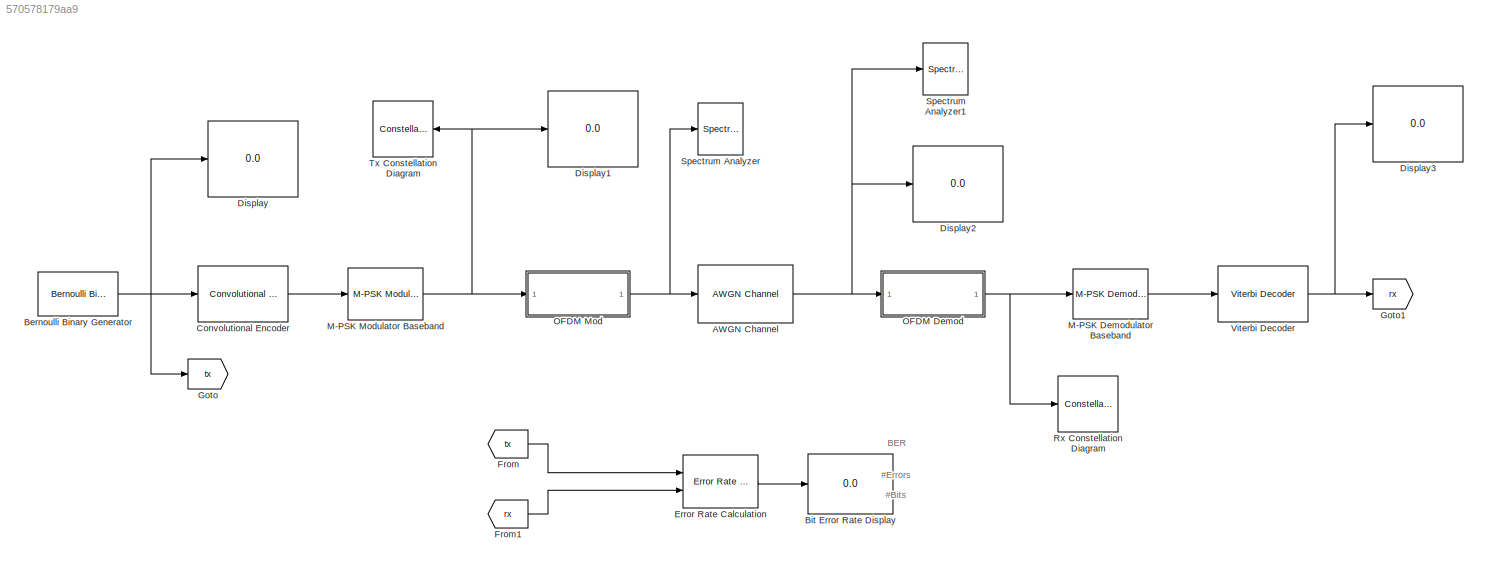
MODEL slx_570578179aa9
KIND model
CONFIG AbsTol = auto
CONFIG FixedStep = auto
CONFIG MaxStep = auto
CONFIG MinStep = auto
CONFIG RelTol = 1e-3
CONFIG SampleTimeConstraint = Unconstrained
CONFIG Solver = VariableStepDiscrete
CONFIG SolverMode = SingleTasking
CONFIG SolverName = VariableStepDiscrete
CONFIG StartTime = 0.0
CONFIG StopTime = 1
WORKSPACE source: MAT-file member
WORKSPACE M = 4
BLOCK [Reference] AWGN Channel  REF=commchan3/AWGN
Channel
  Ports = [1, 1]
  SourceBlock = commchan3/AWGN\nChannel
  SourceType = AWGN Channel
  UserDataPersistent = on
BLOCK [Reference] Bernoulli Binary Generator  REF=commrandsrc3/Bernoulli Binary
Generator
  Ports = [0, 1]
  SourceBlock = commrandsrc3/Bernoulli Binary\nGenerator
  SourceType = Bernoulli Binary Generator
BLOCK [Display] Bit Error Rate Display
  Decimation = 1
  Ports = [1]
BLOCK [Reference] Convolutional Encoder  REF=commcnvcod2/Convolutional
Encoder
  Ports = [1, 1]
  SourceBlock = commcnvcod2/Convolutional\nEncoder
  SourceType = Convolutional Encoder
BLOCK [Display] Display
  Decimation = 1
  Ports = [1]
BLOCK [Display] Display1
  Decimation = 1
  Ports = [1]
BLOCK [Display] Display2
  Decimation = 1
  Ports = [1]
BLOCK [Display] Display3
  Decimation = 1
  Ports = [1]
BLOCK [Reference] Error Rate Calculation  REF=commsink2/Error Rate
Calculation
  Ports = [2, 1]
  SourceBlock = commsink2/Error Rate\nCalculation
  SourceType = Error Rate Calculation
BLOCK [From] From
  GotoTag = tx
BLOCK [From] From1
  GotoTag = rx
BLOCK [Goto] Goto
  GotoTag = tx
BLOCK [Goto] Goto1
  GotoTag = rx
BLOCK [Reference] M-PSK Demodulator Baseband  REF=commdigbbndpm3/M-PSK
Demodulator
Baseband
  Ports = [1, 1]
  SourceBlock = commdigbbndpm3/M-PSK\nDemodulator\nBaseband
  SourceType = M-PSK Demodulator Baseband
BLOCK [Reference] M-PSK Modulator Baseband  REF=commdigbbndpm3/M-PSK
Modulator
Baseband
  Ports = [1, 1]
  SourceBlock = commdigbbndpm3/M-PSK\nModulator\nBaseband
  SourceType = M-PSK Modulator Baseband
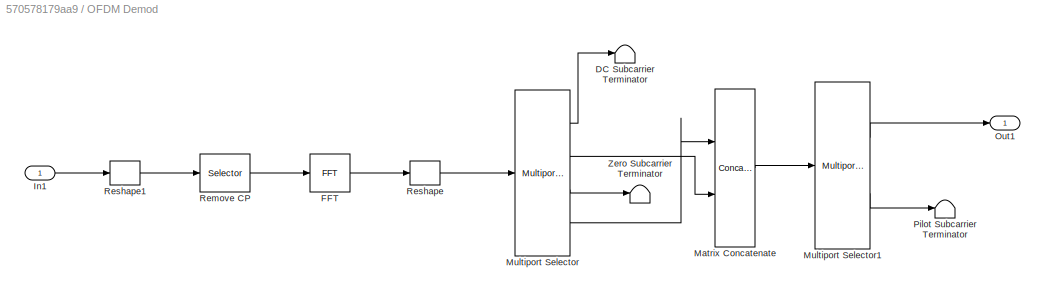
BLOCK [SubSystem] OFDM Demod
  Ports = [1, 1]
  RequestExecContextInheritance = off
  Variant = off
BLOCK [Terminator] OFDM Demod/DC Subcarrier Terminator
BLOCK [Reference] OFDM Demod/FFT  REF=dspxfrm3/FFT
  Ports = [1, 1]
  SourceBlock = dspxfrm3/FFT
  SourceType = FFT
BLOCK [Inport] OFDM Demod/In1
  IconDisplay = Port number
BLOCK [Concatenate] OFDM Demod/Matrix Concatenate
  Mode = Multidimensional array
  Ports = [2, 1]
BLOCK [Reference] OFDM Demod/Multiport Selector  REF=dspindex/Multiport
Selector
  Ports = [1, 4]
  SourceBlock = dspindex/Multiport\nSelector
  SourceType = Multiport Selector
BLOCK [Reference] OFDM Demod/Multiport Selector1  REF=dspindex/Multiport
Selector
  Ports = [1, 2]
  SourceBlock = dspindex/Multiport\nSelector
  SourceType = Multiport Selector
BLOCK [Outport] OFDM Demod/Out1
  IconDisplay = Port number
BLOCK [Terminator] OFDM Demod/Pilot Subcarrier Terminator
BLOCK [Selector] OFDM Demod/Remove CP
  IndexOptions = Index vector (dialog),Select all
  Indices = [17:80],1
  InputPortWidth = 3
  NumberOfDimensions = 2
  OutputSizes = 1,1
  Ports = [1, 1]
BLOCK [Reshape] OFDM Demod/Reshape
  OutputDimensionality = Customize
  OutputDimensions = [64, 1]
  Ports = [1, 1]
BLOCK [Reshape] OFDM Demod/Reshape1
  OutputDimensionality = Customize
  OutputDimensions = [80,1]
  Ports = [1, 1]
BLOCK [Terminator] OFDM Demod/Zero Subcarrier Terminator
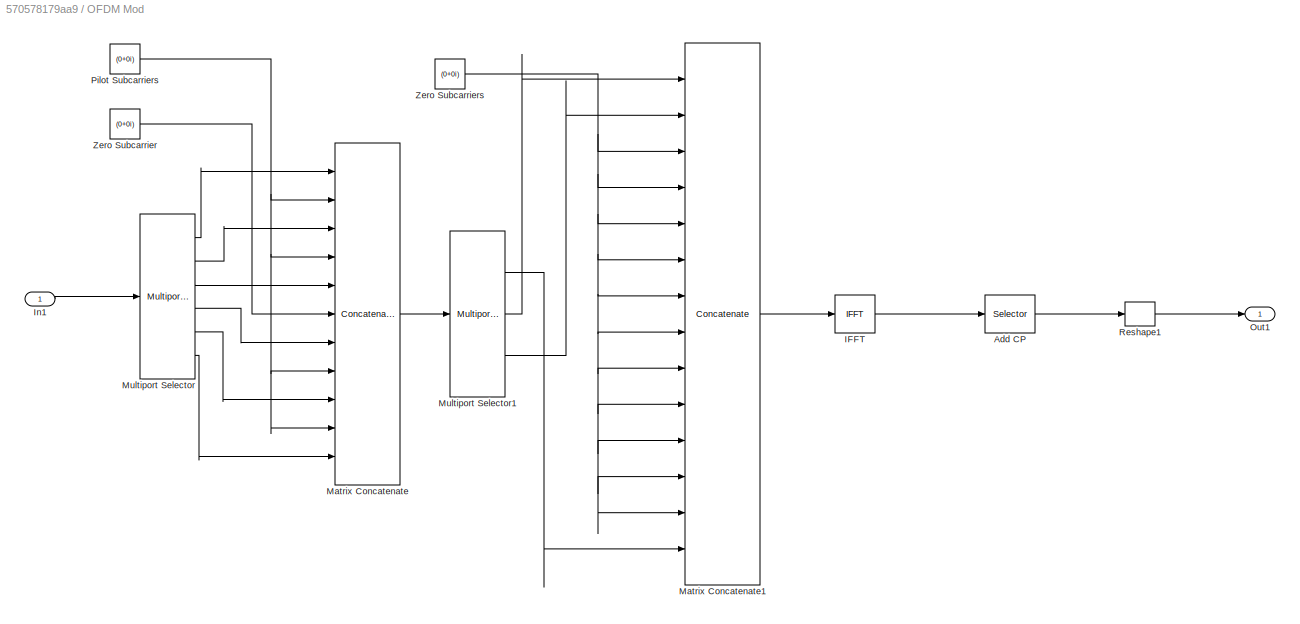
BLOCK [SubSystem] OFDM Mod
  Ports = [1, 1]
  RequestExecContextInheritance = off
  Variant = off
BLOCK [Selector] OFDM Mod/Add CP
  IndexOptions = Index vector (dialog),Select all
  Indices = [49:64,1:64],1
  InputPortWidth = 3
  NumberOfDimensions = 2
  OutputSizes = 1,1
  Ports = [1, 1]
BLOCK [Reference] OFDM Mod/IFFT  REF=dspxfrm3/IFFT
  Ports = [1, 1]
  SourceBlock = dspxfrm3/IFFT
  SourceType = IFFT
BLOCK [Inport] OFDM Mod/In1
  IconDisplay = Port number
BLOCK [Concatenate] OFDM Mod/Matrix Concatenate
  Mode = Multidimensional array
  NumInputs = 11
  Ports = [11, 1]
BLOCK [Concatenate] OFDM Mod/Matrix Concatenate1
  Mode = Multidimensional array
  NumInputs = 14
  Ports = [14, 1]
BLOCK [Reference] OFDM Mod/Multiport Selector  REF=dspindex/Multiport
Selector
  Ports = [1, 6]
  SourceBlock = dspindex/Multiport\nSelector
  SourceType = Multiport Selector
BLOCK [Reference] OFDM Mod/Multiport Selector1  REF=dspindex/Multiport
Selector
  Ports = [1, 3]
  SourceBlock = dspindex/Multiport\nSelector
  SourceType = Multiport Selector
BLOCK [Outport] OFDM Mod/Out1
  IconDisplay = Port number
BLOCK [Constant] OFDM Mod/Pilot Subcarriers
  Value = (0+0i)
BLOCK [Reshape] OFDM Mod/Reshape1
  OutputDimensionality = Column vector (2-D)
  Ports = [1, 1]
BLOCK [Constant] OFDM Mod/Zero Subcarrier
  Value = (0+0i)
BLOCK [Constant] OFDM Mod/Zero Subcarriers 
  Value = (0+0i)
BLOCK [ConstellationDiagram] Rx Constellation Diagram
  Ports = [1]
  ScopeSpecificationString = comm.scopes.ConstellationDiagramBlockCfg('CurrentConfiguration', extmgr.ConfigurationSet(extmgr.Configuration('Core','General UI',true),extmgr.Configuration('Core','Source UI',true),extmgr.Configuration('Sources','WiredSimulink',true),extmgr.Configuration('Visuals','Constellation',true,'AxesProperties',struct('Color',[0 0 0],'XColor',[0.686274509803922 0.686274509803922 0.686274509803922],'YColor'...<+685ch>
BLOCK [SpectrumAnalyzer] Spectrum Analyzer
  NumInputPorts = 1
  Ports = [1]
  ScopeSpecificationString = spbscopes.SpectrumAnalyzerBlockCfg('CurrentConfiguration', extmgr.ConfigurationSet(extmgr.Configuration('Core','General UI',true),extmgr.Configuration('Core','Source UI',true),extmgr.Configuration('Sources','WiredSimulink',true),extmgr.Configuration('Sources','Simulink',false),extmgr.Configuration('Sources','SimulinkEvent',false),extmgr.Configuration('Sources','File',false),extmgr.Configuration('S...<+2857ch>
BLOCK [SpectrumAnalyzer] Spectrum Analyzer1
  NumInputPorts = 1
  Ports = [1]
  ScopeSpecificationString = spbscopes.SpectrumAnalyzerBlockCfg('CurrentConfiguration', extmgr.ConfigurationSet(extmgr.Configuration('Core','General UI',true),extmgr.Configuration('Core','Source UI',true),extmgr.Configuration('Sources','WiredSimulink',true),extmgr.Configuration('Sources','Simulink',false),extmgr.Configuration('Sources','SimulinkEvent',false),extmgr.Configuration('Sources','File',false),extmgr.Configuration('S...<+2856ch>
BLOCK [ConstellationDiagram] Tx Constellation Diagram
  Ports = [1]
  ScopeSpecificationString = comm.scopes.ConstellationDiagramBlockCfg('CurrentConfiguration', extmgr.ConfigurationSet(extmgr.Configuration('Core','General UI',true),extmgr.Configuration('Core','Source UI',true),extmgr.Configuration('Sources','WiredSimulink',true),extmgr.Configuration('Visuals','Constellation',true,'AxesProperties',struct('Color',[0 0 0],'XColor',[0.686274509803922 0.686274509803922 0.686274509803922],'YColor'...<+683ch>
BLOCK [Reference] Viterbi Decoder  REF=commcnvcod2/Viterbi Decoder
  Ports = [1, 1]
  SourceBlock = commcnvcod2/Viterbi Decoder
  SourceType = Viterbi Decoder
ANNOTATION (root): #Bits
ANNOTATION (root): #Errors
ANNOTATION (root): BER
NET AWGN Channel:1 -> Display2:1, OFDM Demod:1, Spectrum Analyzer1:1
NET Bernoulli Binary Generator:1 -> Convolutional Encoder:1, Display:1, Goto:1
LINE Convolutional Encoder:1 -> M-PSK Modulator Baseband:1
LINE Error Rate Calculation:1 -> Bit Error Rate Display:1
LINE From1:1 -> Error Rate Calculation:2
LINE From:1 -> Error Rate Calculation:1
LINE M-PSK Demodulator Baseband:1 -> Viterbi Decoder:1
NET M-PSK Modulator Baseband:1 -> Display1:1, OFDM Mod:1, Tx Constellation Diagram:1
LINE OFDM Demod/FFT:1 -> OFDM Demod/Reshape:1
LINE OFDM Demod/In1:1 -> OFDM Demod/Reshape1:1
LINE OFDM Demod/Matrix Concatenate:1 -> OFDM Demod/Multiport Selector1:1
LINE OFDM Demod/Multiport Selector1:1 -> OFDM Demod/Out1:1
LINE OFDM Demod/Multiport Selector1:2 -> OFDM Demod/Pilot Subcarrier Terminator:1
LINE OFDM Demod/Multiport Selector:1 -> OFDM Demod/DC Subcarrier Terminator:1
LINE OFDM Demod/Multiport Selector:2 -> OFDM Demod/Matrix Concatenate:2
LINE OFDM Demod/Multiport Selector:3 -> OFDM Demod/Zero Subcarrier Terminator:1
LINE OFDM Demod/Multiport Selector:4 -> OFDM Demod/Matrix Concatenate:1
LINE OFDM Demod/Remove CP:1 -> OFDM Demod/FFT:1
LINE OFDM Demod/Reshape1:1 -> OFDM Demod/Remove CP:1
LINE OFDM Demod/Reshape:1 -> OFDM Demod/Multiport Selector:1
NET OFDM Demod:1 -> M-PSK Demodulator Baseband:1, Rx Constellation Diagram:1
LINE OFDM Mod/Add CP:1 -> OFDM Mod/Reshape1:1
LINE OFDM Mod/IFFT:1 -> OFDM Mod/Add CP:1
LINE OFDM Mod/In1:1 -> OFDM Mod/Multiport Selector:1
LINE OFDM Mod/Matrix Concatenate1:1 -> OFDM Mod/IFFT:1
LINE OFDM Mod/Matrix Concatenate:1 -> OFDM Mod/Multiport Selector1:1
LINE OFDM Mod/Multiport Selector1:1 -> OFDM Mod/Matrix Concatenate1:14
LINE OFDM Mod/Multiport Selector1:2 -> OFDM Mod/Matrix Concatenate1:1
LINE OFDM Mod/Multiport Selector1:3 -> OFDM Mod/Matrix Concatenate1:2
LINE OFDM Mod/Multiport Selector:1 -> OFDM Mod/Matrix Concatenate:1
LINE OFDM Mod/Multiport Selector:2 -> OFDM Mod/Matrix Concatenate:3
LINE OFDM Mod/Multiport Selector:3 -> OFDM Mod/Matrix Concatenate:5
LINE OFDM Mod/Multiport Selector:4 -> OFDM Mod/Matrix Concatenate:7
LINE OFDM Mod/Multiport Selector:5 -> OFDM Mod/Matrix Concatenate:9
LINE OFDM Mod/Multiport Selector:6 -> OFDM Mod/Matrix Concatenate:11
NET OFDM Mod/Pilot Subcarriers:1 -> OFDM Mod/Matrix Concatenate:10, OFDM Mod/Matrix Concatenate:2, OFDM Mod/Matrix Concatenate:4, OFDM Mod/Matrix Concatenate:8
LINE OFDM Mod/Reshape1:1 -> OFDM Mod/Out1:1
LINE OFDM Mod/Zero Subcarrier:1 -> OFDM Mod/Matrix Concatenate:6
NET OFDM Mod/Zero Subcarriers :1 -> OFDM Mod/Matrix Concatenate1:10, OFDM Mod/Matrix Concatenate1:11, OFDM Mod/Matrix Concatenate1:12, OFDM Mod/Matrix Concatenate1:13, OFDM Mod/Matrix Concatenate1:3, OFDM Mod/Matrix Concatenate1:4, OFDM Mod/Matrix Concatenate1:5, OFDM Mod/Matrix Concatenate1:6, OFDM Mod/Matrix Concatenate1:7, OFDM Mod/Matrix Concatenate1:8, OFDM Mod/Matrix Concatenate1:9
NET OFDM Mod:1 -> AWGN Channel:1, Spectrum Analyzer:1
NET Viterbi Decoder:1 -> Display3:1, Goto1:1
note: NET lines group one-source signal fan-out (src -> all destinations, sorted); 1:1 wires keep LINE
